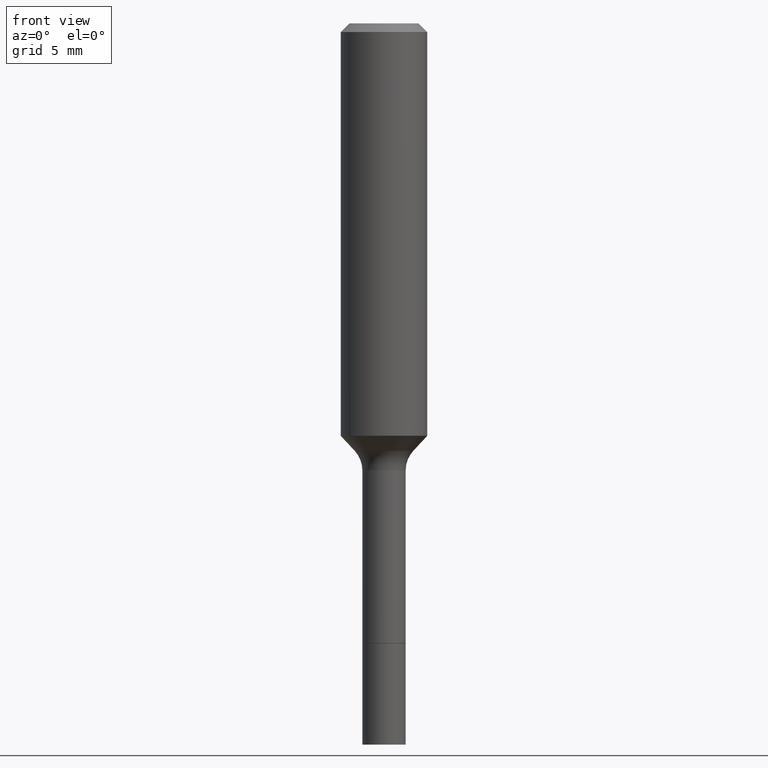
[diagram: clean part render]
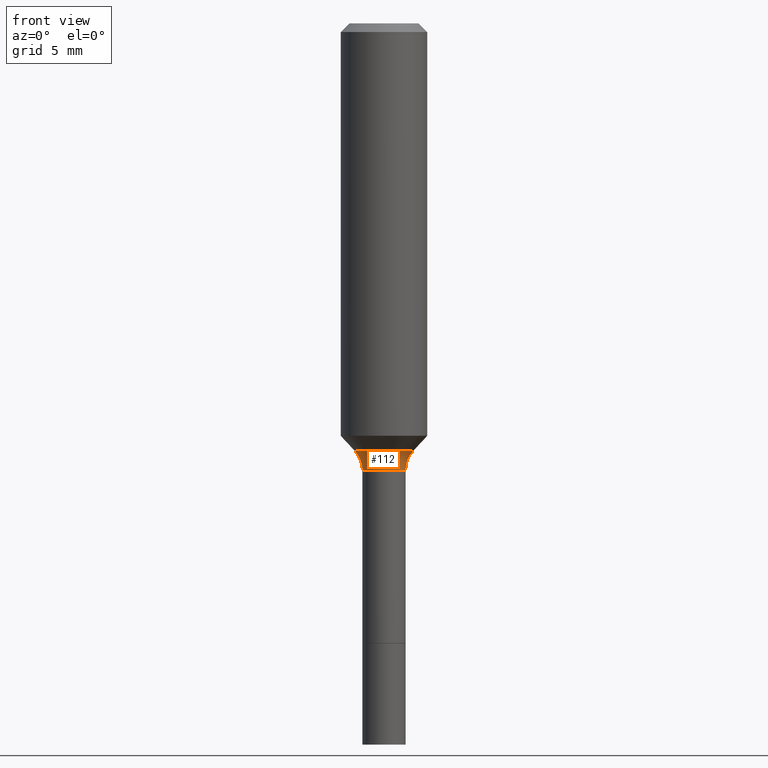
[diagram: same view with one face highlighted and labeled with its STEP entity id]
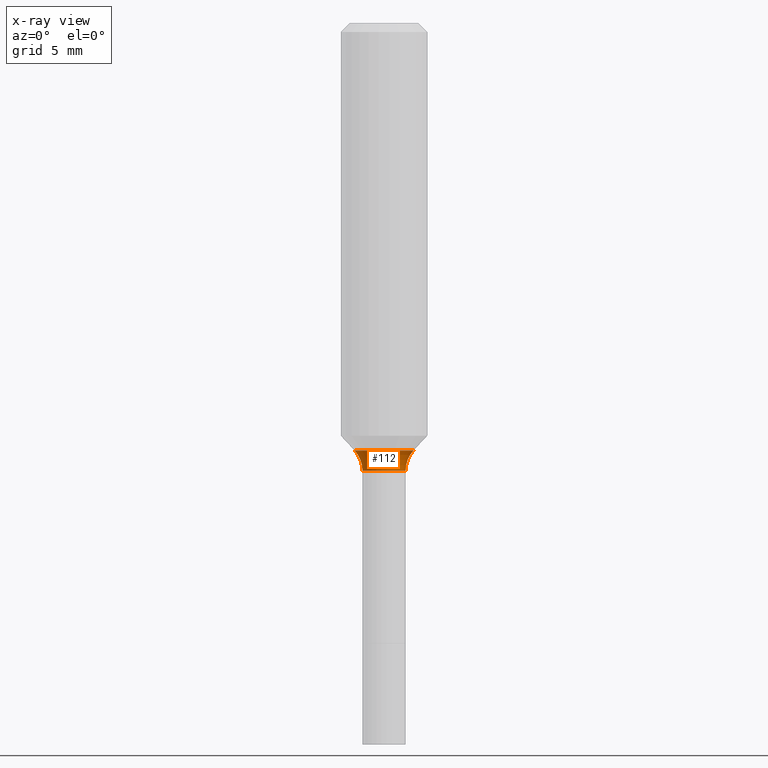
[diagram: x-ray of the same camera — body ghosted, the highlighted face saturated]
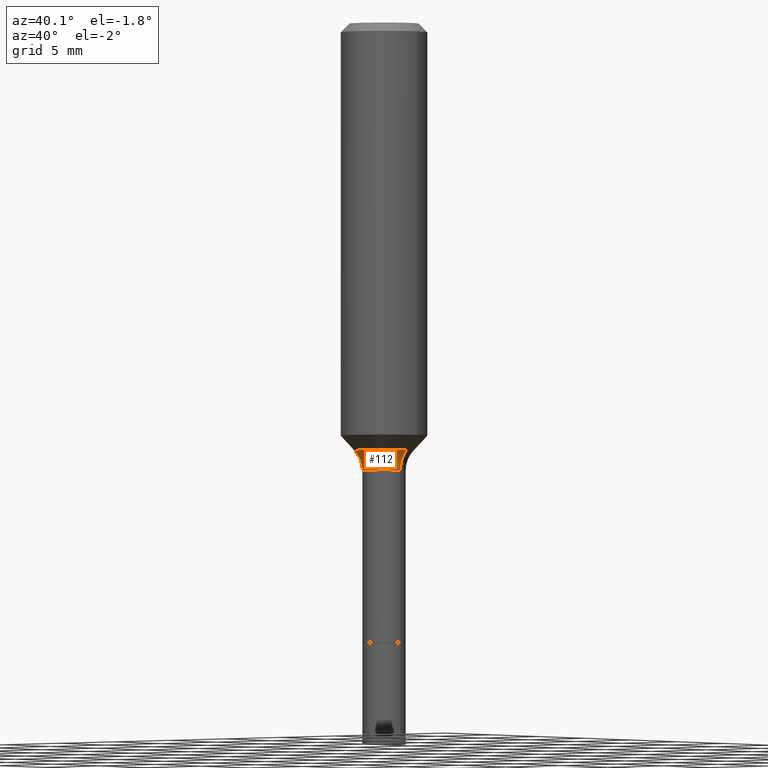
[diagram: same view with one face highlighted and labeled with its STEP entity id]
A machine part, front view. The second image highlights one B-rep face of the part: STEP entity #112.
The next image is the same camera in x-ray: the body ghosted, the highlighted face saturated — about 0% of this face is hidden behind the body in this view.
A second angle (auxiliary view) of the same face is appended — the face is thin or edge-on in the first view.
In plain terms, the highlighted toroidal blend (fillet) surface has major radius 3.5319 mm and minor (blend) radius 2.032 mm.
Its self-contained STEP definition (entity closure, byte-faithful):
#1 = TOROIDAL_SURFACE ( 'NONE', #412, 0.1390499999999999514, 0.08000000000000001554 ) ;
#15 = DIRECTION ( 'NONE',  ( -1.000000000000000000, 7.105427357601005014E-15, 0.000000000000000000 ) ) ;
#16 = VERTEX_POINT ( 'NONE', #320 ) ;
#27 = FACE_OUTER_BOUND ( 'NONE', #278, .T. ) ;
#41 = AXIS2_PLACEMENT_3D ( 'NONE', #46, #415, #125 ) ;
#46 = CARTESIAN_POINT ( 'NONE',  ( 2.984694677948959472E-29, -4.261352974058059028E-15, -1.220499999999999918 ) ) ;
#50 = EDGE_CURVE ( 'NONE', #309, #403, #264, .T. ) ;
#91 = CARTESIAN_POINT ( 'NONE',  ( -0.1390499999999999514, -3.273343299983640064E-15, -1.220499999999999918 ) ) ;
#108 = ORIENTED_EDGE ( 'NONE', *, *, #178, .T. ) ;
#112 = ADVANCED_FACE ( 'NONE', ( #27 ), #1, .F. ) ;
#113 = CARTESIAN_POINT ( 'NONE',  ( 0.1390499999999999514, -5.232333934390334022E-15, -1.220499999999999918 ) ) ;
#125 = DIRECTION ( 'NONE',  ( 1.000000000000000000, -6.982962677686263555E-15, 0.000000000000000000 ) ) ;
#160 = CARTESIAN_POINT ( 'NONE',  ( 2.984694677948959472E-29, -4.261352974058059028E-15, -1.220499999999999918 ) ) ;
#178 = EDGE_CURVE ( 'NONE', #16, #403, #228, .T. ) ;
#183 = ORIENTED_EDGE ( 'NONE', *, *, #50, .F. ) ;
#185 = ORIENTED_EDGE ( 'NONE', *, *, #500, .T. ) ;
#187 = CIRCLE ( 'NONE', #464, 0.08054170387046662161 ) ;
#192 = VERTEX_POINT ( 'NONE', #219 ) ;
#219 = CARTESIAN_POINT ( 'NONE',  ( -0.08054170387046642732, -3.498574984166661401E-15, -1.165940131195000173 ) ) ;
#228 = CIRCLE ( 'NONE', #41, 0.05904999999999994281 ) ;
#248 = EDGE_CURVE ( 'NONE', #192, #309, #187, .T. ) ;
#264 = CIRCLE ( 'NONE', #420, 0.08000000000000000167 ) ;
#278 = EDGE_LOOP ( 'NONE', ( #465, #185, #108, #183 ) ) ;
#301 = CARTESIAN_POINT ( 'NONE',  ( 0.05904999999999994281, -4.673696920175432370E-15, -1.220499999999999918 ) ) ;
#302 = CARTESIAN_POINT ( 'NONE',  ( 0.08054170387046642732, -4.633277922400398622E-15, -1.165940131195000173 ) ) ;
#309 = VERTEX_POINT ( 'NONE', #302 ) ;
#320 = CARTESIAN_POINT ( 'NONE',  ( -0.05904999999999994281, -4.664894214223991994E-15, -1.220499999999999918 ) ) ;
#323 = DIRECTION ( 'NONE',  ( -2.445468806185136597E-29, 3.491481338843145583E-15, 1.000000000000000000 ) ) ;
#329 = DIRECTION ( 'NONE',  ( 1.000000000000000000, -6.982962677686262766E-15, 0.000000000000000000 ) ) ;
#341 = AXIS2_PLACEMENT_3D ( 'NONE', #91, #454, #15 ) ;
#374 = CARTESIAN_POINT ( 'NONE',  ( 2.851270220716778580E-29, -4.070858210275671756E-15, -1.165940131195000173 ) ) ;
#390 = CIRCLE ( 'NONE', #341, 0.08000000000000000167 ) ;
#403 = VERTEX_POINT ( 'NONE', #301 ) ;
#412 = AXIS2_PLACEMENT_3D ( 'NONE', #160, #323, #473 ) ;
#415 = DIRECTION ( 'NONE',  ( -2.445468806185136597E-29, 3.491481338843145583E-15, 1.000000000000000000 ) ) ;
#420 = AXIS2_PLACEMENT_3D ( 'NONE', #113, #510, #468 ) ;
#454 = DIRECTION ( 'NONE',  ( 7.105427357601001859E-15, 1.000000000000000000, -3.491481338843145583E-15 ) ) ;
#464 = AXIS2_PLACEMENT_3D ( 'NONE', #374, #485, #329 ) ;
#465 = ORIENTED_EDGE ( 'NONE', *, *, #248, .F. ) ;
#468 = DIRECTION ( 'NONE',  ( 1.000000000000000000, -6.982962677686271444E-15, 0.000000000000000000 ) ) ;
#473 = DIRECTION ( 'NONE',  ( 1.000000000000000000, -6.982962677686265133E-15, 4.883557194083112340E-29 ) ) ;
#485 = DIRECTION ( 'NONE',  ( -2.445468806185136597E-29, 3.491481338843145583E-15, 1.000000000000000000 ) ) ;
#500 = EDGE_CURVE ( 'NONE', #192, #16, #390, .T. ) ;
#510 = DIRECTION ( 'NONE',  ( -6.982962677686266711E-15, -1.000000000000000000, 3.491481338843145583E-15 ) ) ;